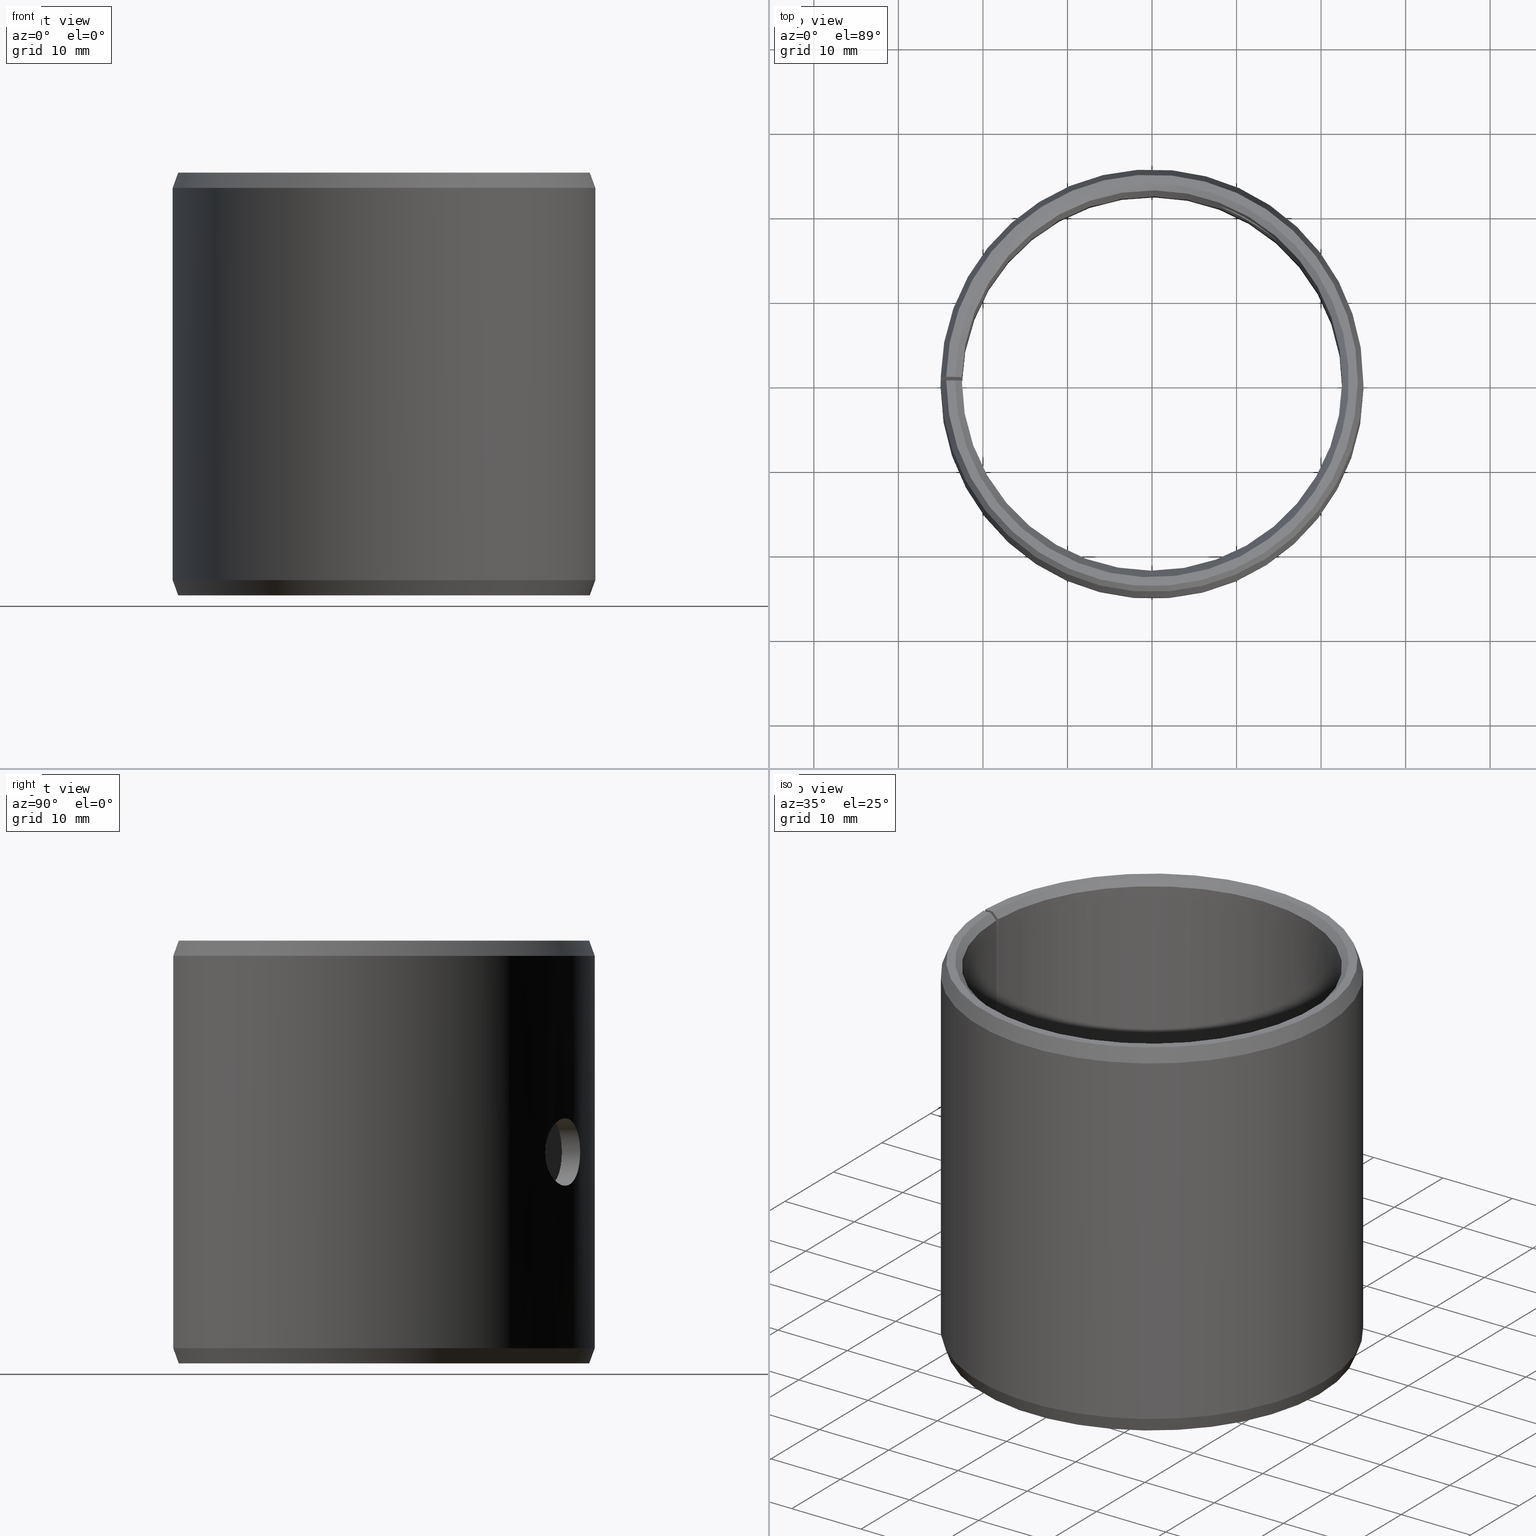
[diagram: canonical four-view strip — front | top / right | iso, engineering-drawing reading convention]
A machine part, canonical four-view strip (front | top / right | iso — engineering-drawing reading convention). The complete STEP part file that produces these views, byte-faithful:
ISO-10303-21;
HEADER;
FILE_DESCRIPTION(('STEP AP203'),'1');
FILE_NAME('440-POM4550LMB.stp','2016-09-21T00:51:27',(' '),(' '),'Spatial InterOp 3D',' ',' ');
FILE_SCHEMA(('CONFIG_CONTROL_DESIGN'));
ENDSEC;
DATA;
#1=DESIGN_CONTEXT('',#51,'design');
#2=APPLICATION_PROTOCOL_DEFINITION('INTERNATIONAL STANDARD','config_control_design',1994,#51);
#3=PRODUCT_CATEGORY_RELATIONSHIP('NONE','NONE',#52,#53);
#4=DATE_AND_TIME(#54,#55);
#5=DATE_TIME_ROLE('creation_date');
#6=DATE_TIME_ROLE('classification_date');
#7=PERSON_AND_ORGANIZATION_ROLE('creator');
#8=PERSON_AND_ORGANIZATION_ROLE('design_supplier');
#9=PERSON_AND_ORGANIZATION_ROLE('classification_officer');
#10=PERSON_AND_ORGANIZATION_ROLE('design_owner');
#11=APPROVAL_PERSON_ORGANIZATION(#56,#57,#58);
#12=APPROVAL_DATE_TIME(#4,#57);
#13=CC_DESIGN_APPROVAL(#57,(#59,#60,#61));
#14=CC_DESIGN_DATE_AND_TIME_ASSIGNMENT(#4,#5,(#61));
#15=CC_DESIGN_DATE_AND_TIME_ASSIGNMENT(#4,#6,(#59));
#16=CC_DESIGN_PERSON_AND_ORGANIZATION_ASSIGNMENT(#56,#10,(#62));
#17=CC_DESIGN_PERSON_AND_ORGANIZATION_ASSIGNMENT(#56,#7,(#61));
#18=CC_DESIGN_PERSON_AND_ORGANIZATION_ASSIGNMENT(#56,#7,(#60));
#19=CC_DESIGN_PERSON_AND_ORGANIZATION_ASSIGNMENT(#56,#8,(#60));
#20=CC_DESIGN_SECURITY_CLASSIFICATION(#59,(#60));
#21=CC_DESIGN_PERSON_AND_ORGANIZATION_ASSIGNMENT(#56,#9,(#59));
#22=SHAPE_DEFINITION_REPRESENTATION(#63,#64);
#23=DESIGN_CONTEXT('',#65,'design');
#24=APPLICATION_PROTOCOL_DEFINITION('INTERNATIONAL STANDARD','config_control_design',1994,#65);
#25=PRODUCT_CATEGORY_RELATIONSHIP('NONE','NONE',#66,#67);
#26=DATE_AND_TIME(#68,#69);
#27=DATE_TIME_ROLE('creation_date');
#28=DATE_TIME_ROLE('classification_date');
#29=PERSON_AND_ORGANIZATION_ROLE('creator');
#30=PERSON_AND_ORGANIZATION_ROLE('design_supplier');
#31=PERSON_AND_ORGANIZATION_ROLE('classification_officer');
#32=PERSON_AND_ORGANIZATION_ROLE('design_owner');
#33=APPROVAL_PERSON_ORGANIZATION(#70,#71,#72);
#34=APPROVAL_DATE_TIME(#26,#71);
#35=CC_DESIGN_APPROVAL(#71,(#73,#74,#75));
#36=CC_DESIGN_DATE_AND_TIME_ASSIGNMENT(#26,#27,(#75));
#37=CC_DESIGN_DATE_AND_TIME_ASSIGNMENT(#26,#28,(#73));
#38=CC_DESIGN_PERSON_AND_ORGANIZATION_ASSIGNMENT(#70,#32,(#76));
#39=CC_DESIGN_PERSON_AND_ORGANIZATION_ASSIGNMENT(#70,#29,(#75));
#40=CC_DESIGN_PERSON_AND_ORGANIZATION_ASSIGNMENT(#70,#29,(#74));
#41=CC_DESIGN_PERSON_AND_ORGANIZATION_ASSIGNMENT(#70,#30,(#74));
#42=CC_DESIGN_SECURITY_CLASSIFICATION(#73,(#74));
#43=CC_DESIGN_PERSON_AND_ORGANIZATION_ASSIGNMENT(#70,#31,(#73));
#44=CONTEXT_DEPENDENT_SHAPE_REPRESENTATION(#77,#78);
#45=SHAPE_DEFINITION_REPRESENTATION(#79,#80);
#46=SHAPE_REPRESENTATION_RELATIONSHIP('NONE','NONE',#80,#81);
#47= (GEOMETRIC_REPRESENTATION_CONTEXT(3)GLOBAL_UNCERTAINTY_ASSIGNED_CONTEXT((#84))GLOBAL_UNIT_ASSIGNED_CONTEXT((#86,#87,#88))REPRESENTATION_CONTEXT('NONE','WORKSPACE'));
#51=APPLICATION_CONTEXT('CONFIGURATION CONTROLLED 3D DESIGNS OF MECHANICAL PARTS AND ASSEMBLIES');
#52=PRODUCT_CATEGORY('part','NONE');
#53=PRODUCT_RELATED_PRODUCT_CATEGORY('detail',' ',(#62));
#54=CALENDAR_DATE(2016,21,8);
#55=LOCAL_TIME(2,51,27.0,#90);
#56=PERSON_AND_ORGANIZATION(#91,#92);
#57=APPROVAL(#93,'SOLID MODEL');
#58=APPROVAL_ROLE('APPROVED');
#59=SECURITY_CLASSIFICATION('','',#94);
#60=PRODUCT_DEFINITION_FORMATION_WITH_SPECIFIED_SOURCE(' ','NONE',#62,.NOT_KNOWN.);
#61=PRODUCT_DEFINITION('NONE','NONE',#60,#1);
#62=PRODUCT('','','PART--DESC',(#95));
#63=PRODUCT_DEFINITION_SHAPE('NONE','NONE',#61);
#64=SHAPE_REPRESENTATION('',(#96,#97),#98);
#65=APPLICATION_CONTEXT('CONFIGURATION CONTROLLED 3D DESIGNS OF MECHANICAL PARTS AND ASSEMBLIES');
#66=PRODUCT_CATEGORY('part','NONE');
#67=PRODUCT_RELATED_PRODUCT_CATEGORY('detail',' ',(#76));
#68=CALENDAR_DATE(2016,21,8);
#69=LOCAL_TIME(2,51,27.0,#99);
#70=PERSON_AND_ORGANIZATION(#100,#101);
#71=APPROVAL(#102,'SOLID MODEL');
#72=APPROVAL_ROLE('APPROVED');
#73=SECURITY_CLASSIFICATION('','',#103);
#74=PRODUCT_DEFINITION_FORMATION_WITH_SPECIFIED_SOURCE(' ','NONE',#76,.NOT_KNOWN.);
#75=PRODUCT_DEFINITION('440-POM4550LMB','440-POM4550LMB',#74,#23);
#76=PRODUCT('440-POM4550LMB','440-POM4550LMB','PART-440-POM4550LMB-DESC',(#104));
#77=(REPRESENTATION_RELATIONSHIP('','',#80,#64)REPRESENTATION_RELATIONSHIP_WITH_TRANSFORMATION(#107)SHAPE_REPRESENTATION_RELATIONSHIP());
#78=PRODUCT_DEFINITION_SHAPE('NAUO-PROD-DEF','NAUO-PROD-DEF',#109);
#79=PRODUCT_DEFINITION_SHAPE('NONE','NONE',#75);
#80=SHAPE_REPRESENTATION('440-POM4550LMB',(#96),#98);
#81=ADVANCED_BREP_SHAPE_REPRESENTATION('',(#110),#47);
#84=UNCERTAINTY_MEASURE_WITH_UNIT(LENGTH_MEASURE(1.0E-006),#86,'','');
#86= (CONVERSION_BASED_UNIT('METRE',#113)LENGTH_UNIT()NAMED_UNIT(#116));
#87= (NAMED_UNIT(#118)PLANE_ANGLE_UNIT()SI_UNIT($,.RADIAN.));
#88= (NAMED_UNIT(#118)SOLID_ANGLE_UNIT()SI_UNIT($,.STERADIAN.));
#90=COORDINATED_UNIVERSAL_TIME_OFFSET(1,0,.AHEAD.);
#91=PERSON('','UNSPECIFIED',$,$,$,$);
#92=ORGANIZATION('UNSPECIFIED','UNSPECIFIED','UNSPECIFIED');
#93=APPROVAL_STATUS('approved');
#94=SECURITY_CLASSIFICATION_LEVEL('unclassified');
#95=MECHANICAL_CONTEXT('',#51,'mechanical');
#96=AXIS2_PLACEMENT_3D('',#124,#125,#126);
#97=AXIS2_PLACEMENT_3D('',#127,#128,#129);
#98= (GEOMETRIC_REPRESENTATION_CONTEXT(3)GLOBAL_UNCERTAINTY_ASSIGNED_CONTEXT((#132))GLOBAL_UNIT_ASSIGNED_CONTEXT((#134,#135,#136))REPRESENTATION_CONTEXT('NONE','WORKSPACE'));
#99=COORDINATED_UNIVERSAL_TIME_OFFSET(1,0,.AHEAD.);
#100=PERSON('','UNSPECIFIED',$,$,$,$);
#101=ORGANIZATION('UNSPECIFIED','UNSPECIFIED','UNSPECIFIED');
#102=APPROVAL_STATUS('approved');
#103=SECURITY_CLASSIFICATION_LEVEL('unclassified');
#104=MECHANICAL_CONTEXT('',#65,'mechanical');
#107=ITEM_DEFINED_TRANSFORMATION('','',#96,#97);
#109=NEXT_ASSEMBLY_USAGE_OCCURRENCE('440-POM4550LMB','440-POM4550LMB','440-POM4550LMB',#61,#75,$);
#110=MANIFOLD_SOLID_BREP('',#138);
#113=LENGTH_MEASURE_WITH_UNIT(LENGTH_MEASURE(1.0),#139);
#116=DIMENSIONAL_EXPONENTS(1.0,0.0,0.0,0.0,0.0,0.0,0.0);
#118=DIMENSIONAL_EXPONENTS(0.0,0.0,0.0,0.0,0.0,0.0,0.0);
#124=CARTESIAN_POINT('',(0.0,0.0,0.0));
#125=DIRECTION('',(0.0,0.0,1.0));
#126=DIRECTION('',(1.0,0.0,0.0));
#127=CARTESIAN_POINT('',(0.0,0.0,0.0));
#128=DIRECTION('',(5.48707263966374E-016,-5.48707263966376E-016,1.0));
#129=DIRECTION('',(1.39349996950756E-015,1.0,5.48707263966375E-016));
#132=UNCERTAINTY_MEASURE_WITH_UNIT(LENGTH_MEASURE(1.0E-006),#134,'','');
#134= (CONVERSION_BASED_UNIT('METRE',#142)LENGTH_UNIT()NAMED_UNIT(#145));
#135= (NAMED_UNIT(#147)PLANE_ANGLE_UNIT()SI_UNIT($,.RADIAN.));
#136= (NAMED_UNIT(#147)SOLID_ANGLE_UNIT()SI_UNIT($,.STERADIAN.));
#138=CLOSED_SHELL('',(#153,#154,#155,#156,#157,#158,#159,#160,#161,#162,#163));
#139= (NAMED_UNIT(#116)LENGTH_UNIT()SI_UNIT($,.METRE.));
#142=LENGTH_MEASURE_WITH_UNIT(LENGTH_MEASURE(1.0),#165);
#145=DIMENSIONAL_EXPONENTS(1.0,0.0,0.0,0.0,0.0,0.0,0.0);
#147=DIMENSIONAL_EXPONENTS(0.0,0.0,0.0,0.0,0.0,0.0,0.0);
#153=ADVANCED_FACE('',(#166),#167,.F.);
#154=ADVANCED_FACE('',(#168),#169,.T.);
#155=ADVANCED_FACE('',(#170),#171,.T.);
#156=ADVANCED_FACE('',(#172),#173,.T.);
#157=ADVANCED_FACE('',(#174),#175,.T.);
#158=ADVANCED_FACE('',(#176),#177,.F.);
#159=ADVANCED_FACE('',(#178),#179,.T.);
#160=ADVANCED_FACE('',(#180),#181,.F.);
#161=ADVANCED_FACE('',(#182,#183),#184,.F.);
#162=ADVANCED_FACE('',(#185,#186),#187,.T.);
#163=ADVANCED_FACE('',(#188,#189),#190,.F.);
#165= (NAMED_UNIT(#145)LENGTH_UNIT()SI_UNIT($,.METRE.));
#166=FACE_OUTER_BOUND('',#192,.T.);
#167=CONICAL_SURFACE('',#193,0.0225,0.785398163397449);
#168=FACE_OUTER_BOUND('',#194,.T.);
#169=PLANE('',#195);
#170=FACE_OUTER_BOUND('',#196,.T.);
#171=CONICAL_SURFACE('',#197,0.0243448535783208,0.349065850398867);
#172=FACE_OUTER_BOUND('',#198,.T.);
#173=CONICAL_SURFACE('',#199,0.025,0.349065850398867);
#174=FACE_OUTER_BOUND('',#200,.T.);
#175=PLANE('',#201);
#176=FACE_OUTER_BOUND('',#202,.T.);
#177=CONICAL_SURFACE('',#203,0.0233,0.785398163397448);
#178=FACE_OUTER_BOUND('',#204,.T.);
#179=PLANE('',#205);
#180=FACE_OUTER_BOUND('',#206,.T.);
#181=PLANE('',#207);
#182=FACE_OUTER_BOUND('',#208,.T.);
#183=FACE_BOUND('',#209,.T.);
#184=CYLINDRICAL_SURFACE('',#210,0.0225);
#185=FACE_OUTER_BOUND('',#211,.T.);
#186=FACE_BOUND('',#212,.T.);
#187=CYLINDRICAL_SURFACE('',#213,0.025);
#188=FACE_OUTER_BOUND('',#214,.T.);
#189=FACE_OUTER_BOUND('',#215,.T.);
#190=CYLINDRICAL_SURFACE('',#216,0.004);
#192=EDGE_LOOP('',(#217,#218,#219,#220));
#193=AXIS2_PLACEMENT_3D('',#221,#222,#223);
#194=EDGE_LOOP('',(#224,#225,#226,#227));
#195=AXIS2_PLACEMENT_3D('',#228,#229,#230);
#196=EDGE_LOOP('',(#231,#232,#233,#234));
#197=AXIS2_PLACEMENT_3D('',#235,#236,#237);
#198=EDGE_LOOP('',(#238,#239,#240,#241));
#199=AXIS2_PLACEMENT_3D('',#242,#243,#244);
#200=EDGE_LOOP('',(#245,#246,#247,#248));
#201=AXIS2_PLACEMENT_3D('',#249,#250,#251);
#202=EDGE_LOOP('',(#252,#253,#254,#255));
#203=AXIS2_PLACEMENT_3D('',#256,#257,#258);
#204=EDGE_LOOP('',(#259,#260,#261,#262,#263,#264,#265,#266));
#205=AXIS2_PLACEMENT_3D('',#267,#268,#269);
#206=EDGE_LOOP('',(#270,#271,#272,#273,#274,#275,#276,#277));
#207=AXIS2_PLACEMENT_3D('',#278,#279,#280);
#208=EDGE_LOOP('',(#281,#282,#283,#284));
#209=EDGE_LOOP('',(#285));
#210=AXIS2_PLACEMENT_3D('',#286,#287,#288);
#211=EDGE_LOOP('',(#289,#290,#291,#292));
#212=EDGE_LOOP('',(#293));
#213=AXIS2_PLACEMENT_3D('',#294,#295,#296);
#214=EDGE_LOOP('',(#297));
#215=EDGE_LOOP('',(#298));
#216=AXIS2_PLACEMENT_3D('',#299,#300,#301);
#217=ORIENTED_EDGE('',*,*,#302,.T.);
#218=ORIENTED_EDGE('',*,*,#303,.F.);
#219=ORIENTED_EDGE('',*,*,#304,.F.);
#220=ORIENTED_EDGE('',*,*,#305,.T.);
#221=CARTESIAN_POINT('',(-6.93889390390723E-018,-6.93889390390723E-018,0.0008));
#222=DIRECTION('',(6.12323399573677E-017,-0.0,-1.0));
#223=DIRECTION('',(-1.0,0.0,-6.12323399573677E-017));
#224=ORIENTED_EDGE('',*,*,#306,.T.);
#225=ORIENTED_EDGE('',*,*,#307,.F.);
#226=ORIENTED_EDGE('',*,*,#302,.F.);
#227=ORIENTED_EDGE('',*,*,#308,.T.);
#228=CARTESIAN_POINT('',(0.0004066410699887,0.0232964512971439,1.32594219122078E-018));
#229=DIRECTION('',(6.12323399573677E-017,0.0,-1.0));
#230=DIRECTION('',(-1.0,0.0,-6.12323399573677E-017));
#231=ORIENTED_EDGE('',*,*,#309,.T.);
#232=ORIENTED_EDGE('',*,*,#310,.F.);
#233=ORIENTED_EDGE('',*,*,#306,.F.);
#234=ORIENTED_EDGE('',*,*,#311,.T.);
#235=CARTESIAN_POINT('',(-6.93889390390723E-018,-6.93889390390723E-018,1.3010426069826E-018));
#236=DIRECTION('',(-6.12323399573677E-017,0.0,1.0));
#237=DIRECTION('',(1.0,0.0,6.12323399573677E-017));
#238=ORIENTED_EDGE('',*,*,#312,.T.);
#239=ORIENTED_EDGE('',*,*,#313,.F.);
#240=ORIENTED_EDGE('',*,*,#314,.F.);
#241=ORIENTED_EDGE('',*,*,#315,.T.);
#242=CARTESIAN_POINT('',(-1.04083408558608E-017,-6.93889390390723E-018,0.0482));
#243=DIRECTION('',(6.12323399573677E-017,-0.0,-1.0));
#244=DIRECTION('',(-1.0,0.0,-6.12323399573677E-017));
#245=ORIENTED_EDGE('',*,*,#316,.T.);
#246=ORIENTED_EDGE('',*,*,#317,.T.);
#247=ORIENTED_EDGE('',*,*,#318,.F.);
#248=ORIENTED_EDGE('',*,*,#312,.F.);
#249=CARTESIAN_POINT('',(0.000424876279305002,0.0243411457392039,0.05));
#250=DIRECTION('',(-6.12323399573677E-017,0.0,1.0));
#251=DIRECTION('',(1.0,0.0,6.12323399573677E-017));
#252=ORIENTED_EDGE('',*,*,#319,.T.);
#253=ORIENTED_EDGE('',*,*,#320,.F.);
#254=ORIENTED_EDGE('',*,*,#317,.F.);
#255=ORIENTED_EDGE('',*,*,#321,.T.);
#256=CARTESIAN_POINT('',(-1.04083408558608E-017,-6.93889390390723E-018,0.05));
#257=DIRECTION('',(-6.12323399573677E-017,0.0,1.0));
#258=DIRECTION('',(1.0,0.0,6.12323399573677E-017));
#259=ORIENTED_EDGE('',*,*,#320,.T.);
#260=ORIENTED_EDGE('',*,*,#322,.T.);
#261=ORIENTED_EDGE('',*,*,#303,.T.);
#262=ORIENTED_EDGE('',*,*,#307,.T.);
#263=ORIENTED_EDGE('',*,*,#310,.T.);
#264=ORIENTED_EDGE('',*,*,#323,.T.);
#265=ORIENTED_EDGE('',*,*,#313,.T.);
#266=ORIENTED_EDGE('',*,*,#318,.T.);
#267=CARTESIAN_POINT('',(-6.93889390390723E-018,-0.014,0.0));
#268=DIRECTION('',(1.0,0.0,0.0));
#269=DIRECTION('',(0.0,0.0,-1.0));
#270=ORIENTED_EDGE('',*,*,#321,.F.);
#271=ORIENTED_EDGE('',*,*,#316,.F.);
#272=ORIENTED_EDGE('',*,*,#315,.F.);
#273=ORIENTED_EDGE('',*,*,#324,.F.);
#274=ORIENTED_EDGE('',*,*,#311,.F.);
#275=ORIENTED_EDGE('',*,*,#308,.F.);
#276=ORIENTED_EDGE('',*,*,#305,.F.);
#277=ORIENTED_EDGE('',*,*,#325,.F.);
#278=CARTESIAN_POINT('',(-0.000244333690121977,-0.0139978677321895,-1.49611235765866E-020));
#279=DIRECTION('',(0.999847695156391,-0.0174524064372836,-9.3259819610035E-021));
#280=DIRECTION('',(9.32598196100733E-021,1.0686516840419E-018,-1.0));
#281=ORIENTED_EDGE('',*,*,#304,.T.);
#282=ORIENTED_EDGE('',*,*,#322,.F.);
#283=ORIENTED_EDGE('',*,*,#319,.F.);
#284=ORIENTED_EDGE('',*,*,#325,.T.);
#285=ORIENTED_EDGE('',*,*,#326,.T.);
#286=CARTESIAN_POINT('',(-6.93889390390723E-018,-6.93889390390723E-018,0.0));
#287=DIRECTION('',(6.12323399573677E-017,0.0,-1.0));
#288=DIRECTION('',(-1.0,0.0,-6.12323399573677E-017));
#289=ORIENTED_EDGE('',*,*,#314,.T.);
#290=ORIENTED_EDGE('',*,*,#323,.F.);
#291=ORIENTED_EDGE('',*,*,#309,.F.);
#292=ORIENTED_EDGE('',*,*,#324,.T.);
#293=ORIENTED_EDGE('',*,*,#327,.T.);
#294=CARTESIAN_POINT('',(-6.93889390390723E-018,-6.93889390390723E-018,0.0));
#295=DIRECTION('',(6.12323399573677E-017,0.0,-1.0));
#296=DIRECTION('',(-1.0,0.0,-6.12323399573677E-017));
#297=ORIENTED_EDGE('',*,*,#326,.F.);
#298=ORIENTED_EDGE('',*,*,#327,.F.);
#299=CARTESIAN_POINT('',(0.0171433460140782,-0.0103007614981412,0.025));
#300=DIRECTION('',(0.857167300703911,-0.515038074907061,0.0));
#301=DIRECTION('',(-0.515038074907061,-0.857167300703911,0.0));
#302=EDGE_CURVE('',#328,#329,#330,.T.);
#303=EDGE_CURVE('',#331,#329,#332,.T.);
#304=EDGE_CURVE('',#333,#331,#334,.T.);
#305=EDGE_CURVE('',#333,#328,#335,.T.);
#306=EDGE_CURVE('',#336,#337,#338,.T.);
#307=EDGE_CURVE('',#329,#337,#339,.T.);
#308=EDGE_CURVE('',#328,#336,#340,.T.);
#309=EDGE_CURVE('',#341,#342,#343,.T.);
#310=EDGE_CURVE('',#337,#342,#344,.T.);
#311=EDGE_CURVE('',#336,#341,#345,.T.);
#312=EDGE_CURVE('',#346,#347,#348,.T.);
#313=EDGE_CURVE('',#349,#347,#350,.T.);
#314=EDGE_CURVE('',#351,#349,#352,.T.);
#315=EDGE_CURVE('',#351,#346,#353,.T.);
#316=EDGE_CURVE('',#346,#354,#355,.T.);
#317=EDGE_CURVE('',#354,#356,#357,.T.);
#318=EDGE_CURVE('',#347,#356,#358,.T.);
#319=EDGE_CURVE('',#359,#360,#361,.T.);
#320=EDGE_CURVE('',#356,#360,#362,.T.);
#321=EDGE_CURVE('',#354,#359,#363,.T.);
#322=EDGE_CURVE('',#360,#331,#364,.T.);
#323=EDGE_CURVE('',#342,#349,#365,.T.);
#324=EDGE_CURVE('',#341,#351,#366,.T.);
#325=EDGE_CURVE('',#359,#333,#367,.T.);
#326=EDGE_CURVE('',#368,#368,#369,.T.);
#327=EDGE_CURVE('',#370,#370,#371,.T.);
#328=VERTEX_POINT('',#372);
#329=VERTEX_POINT('',#373);
#330=CIRCLE('',#374,0.0233);
#331=VERTEX_POINT('',#375);
#332=LINE('',#376,#377);
#333=VERTEX_POINT('',#378);
#334=CIRCLE('',#379,0.0225);
#335=LINE('',#380,#381);
#336=VERTEX_POINT('',#382);
#337=VERTEX_POINT('',#383);
#338=CIRCLE('',#384,0.0243448535783208);
#339=LINE('',#385,#386);
#340=LINE('',#387,#388);
#341=VERTEX_POINT('',#389);
#342=VERTEX_POINT('',#390);
#343=CIRCLE('',#391,0.025);
#344=LINE('',#392,#393);
#345=LINE('',#394,#395);
#346=VERTEX_POINT('',#396);
#347=VERTEX_POINT('',#397);
#348=CIRCLE('',#398,0.0243448535783208);
#349=VERTEX_POINT('',#399);
#350=LINE('',#400,#401);
#351=VERTEX_POINT('',#402);
#352=CIRCLE('',#403,0.025);
#353=LINE('',#404,#405);
#354=VERTEX_POINT('',#406);
#355=LINE('',#407,#408);
#356=VERTEX_POINT('',#409);
#357=CIRCLE('',#410,0.0233);
#358=LINE('',#411,#412);
#359=VERTEX_POINT('',#413);
#360=VERTEX_POINT('',#414);
#361=CIRCLE('',#415,0.0225);
#362=LINE('',#416,#417);
#363=LINE('',#418,#419);
#364=LINE('',#420,#421);
#365=LINE('',#422,#423);
#366=LINE('',#424,#425);
#367=LINE('',#426,#427);
#368=VERTEX_POINT('',#428);
#369=B_SPLINE_CURVE_WITH_KNOTS('',3,(#429,#430,#431,#432,#433,#434,#435,#436,#437,#438,#439,#440,#441,#442,#443,#444,#445,#446,#447,#448,#449,#450,#451,#452,#453,#454,#455,#456,#457,#458,#459,#460,#461,#462,#463,#464,#465,#466,#467,#468,#469,#470,#471,#472,#473,#474,#475,#476,#477,#478,#479,#480,#481,#482,#483,#484,#485,#486,#487,#488,#489,#490,#491,#492,#493,#494),.UNSPECIFIED.,.T.,.F.,(2,2,2,2,2,2,2,2,2,2,2,2,2,2,2,2,2,2,2,2,2,2,2,2,2,2,2,2,2,2,2,2,2,2,2),(-0.000783071138351041,0.0,0.000783071138351041,0.00156614227670208,0.00234921341505312,0.00313228455340416,0.0039153556917552,0.00469842683010624,0.00548149796845729,0.00626456910680833,0.00704764024515937,0.00783071138351041,0.00861378252186145,0.00939685366021249,0.0101799247985635,0.0109629959369146,0.0117460670752656,0.0125291382136167,0.0133122093519677,0.0140952804903187,0.0148783516286698,0.0156614227670208,0.0164444939053719,0.0172275650437229,0.0180106361820739,0.018793707320425,0.019576778458776,0.0203598495971271,0.0211429207354781,0.0219259918738291,0.0227090630121802,0.0234921341505312,0.0242752052888823,0.0250582764272333,0.0258413475655843),.UNSPECIFIED.);
#370=VERTEX_POINT('',#495);
#371=B_SPLINE_CURVE_WITH_KNOTS('',3,(#496,#497,#498,#499,#500,#501,#502,#503,#504,#505,#506,#507,#508,#509,#510,#511,#512,#513,#514,#515,#516,#517,#518,#519,#520,#521,#522,#523,#524,#525,#526,#527,#528,#529,#530,#531,#532,#533,#534,#535,#536,#537,#538,#539,#540,#541,#542,#543,#544,#545,#546,#547,#548,#549,#550,#551,#552,#553,#554,#555,#556,#557,#558,#559,#560,#561),.UNSPECIFIED.,.T.,.F.,(2,2,2,2,2,2,2,2,2,2,2,2,2,2,2,2,2,2,2,2,2,2,2,2,2,2,2,2,2,2,2,2,2,2,2),(-0.000782774363577456,0.0,0.000782774363577456,0.00156554872715491,0.00234832309073237,0.00313109745430982,0.00391387181788728,0.00469664618146473,0.00547942054504219,0.00626219490861964,0.0070449692721971,0.00782774363577456,0.00861051799935201,0.00939329236292947,0.0101760667265069,0.0109588410900844,0.0117416154536618,0.0125243898172393,0.0133071641808167,0.0140899385443942,0.0148727129079717,0.0156554872715491,0.0164382616351266,0.017221035998704,0.0180038103622815,0.0187865847258589,0.0195693590894364,0.0203521334530138,0.0211349078165913,0.0219176821801688,0.0227004565437462,0.0234832309073237,0.0242660052709011,0.0250487796344786,0.025831553998056),.UNSPECIFIED.);
#372=CARTESIAN_POINT('',(0.0004066410699887,0.0232964512971439,1.32594219122078E-018));
#373=CARTESIAN_POINT('',(-6.93889390390723E-018,0.0233,1.3010426069826E-018));
#374=AXIS2_PLACEMENT_3D('',#562,#563,#564);
#375=CARTESIAN_POINT('',(-6.93889390390723E-018,0.0225,0.0008));
#376=CARTESIAN_POINT('',(-6.93889390390723E-018,0.0225,0.0008));
#377=VECTOR('',#565,1.0);
#378=CARTESIAN_POINT('',(0.000392679144838874,0.0224965731410188,0.0008));
#379=AXIS2_PLACEMENT_3D('',#566,#567,#568);
#380=CARTESIAN_POINT('',(0.000392679144838874,0.0224965731410188,0.0008));
#381=VECTOR('',#569,1.0);
#382=CARTESIAN_POINT('',(0.000424876279305005,0.0243411457392039,1.32705877575683E-018));
#383=CARTESIAN_POINT('',(-6.93889390390723E-018,0.0243448535783208,1.3010426069826E-018));
#384=AXIS2_PLACEMENT_3D('',#570,#571,#572);
#385=CARTESIAN_POINT('',(-6.93889390390723E-018,0.0233,1.3010426069826E-018));
#386=VECTOR('',#573,1.0);
#387=CARTESIAN_POINT('',(0.0004066410699887,0.0232964512971439,1.32594219122078E-018));
#388=VECTOR('',#574,1.0);
#389=CARTESIAN_POINT('',(0.000436310160932082,0.0249961923789098,0.0018));
#390=CARTESIAN_POINT('',(-6.93889390390723E-018,0.025,0.0018));
#391=AXIS2_PLACEMENT_3D('',#575,#576,#577);
#392=CARTESIAN_POINT('',(-6.93889390390723E-018,0.0243448535783208,1.3010426069826E-018));
#393=VECTOR('',#578,1.0);
#394=CARTESIAN_POINT('',(0.000424876279305005,0.0243411457392039,1.32705877575683E-018));
#395=VECTOR('',#579,1.0);
#396=CARTESIAN_POINT('',(0.000424876279305002,0.0243411457392039,0.05));
#397=CARTESIAN_POINT('',(-1.04083408558608E-017,0.0243448535783208,0.05));
#398=AXIS2_PLACEMENT_3D('',#580,#581,#582);
#399=CARTESIAN_POINT('',(-1.04083408558608E-017,0.025,0.0482));
#400=CARTESIAN_POINT('',(-1.04083408558608E-017,0.025,0.0482));
#401=VECTOR('',#583,1.0);
#402=CARTESIAN_POINT('',(0.000436310160932079,0.0249961923789098,0.0482));
#403=AXIS2_PLACEMENT_3D('',#584,#585,#586);
#404=CARTESIAN_POINT('',(0.000436310160932079,0.0249961923789098,0.0482));
#405=VECTOR('',#587,1.0);
#406=CARTESIAN_POINT('',(0.000406641069988696,0.0232964512971439,0.05));
#407=CARTESIAN_POINT('',(0.000424876279305002,0.0243411457392039,0.05));
#408=VECTOR('',#588,1.0);
#409=CARTESIAN_POINT('',(-1.04083408558608E-017,0.0233,0.05));
#410=AXIS2_PLACEMENT_3D('',#589,#590,#591);
#411=CARTESIAN_POINT('',(-1.04083408558608E-017,0.0243448535783208,0.05));
#412=VECTOR('',#592,1.0);
#413=CARTESIAN_POINT('',(0.00039267914483887,0.0224965731410188,0.0492));
#414=CARTESIAN_POINT('',(-1.04083408558608E-017,0.0225,0.0492));
#415=AXIS2_PLACEMENT_3D('',#593,#594,#595);
#416=CARTESIAN_POINT('',(-1.04083408558608E-017,0.0233,0.05));
#417=VECTOR('',#596,1.0);
#418=CARTESIAN_POINT('',(0.000406641069988696,0.0232964512971439,0.05));
#419=VECTOR('',#597,1.0);
#420=CARTESIAN_POINT('',(-1.04083408558608E-017,0.0225,0.0492));
#421=VECTOR('',#598,1.0);
#422=CARTESIAN_POINT('',(-6.93889390390723E-018,0.025,0.0018));
#423=VECTOR('',#599,1.0);
#424=CARTESIAN_POINT('',(0.000436310160932082,0.0249961923789098,0.0018));
#425=VECTOR('',#600,1.0);
#426=CARTESIAN_POINT('',(0.00039267914483887,0.0224965731410188,0.0492));
#427=VECTOR('',#601,1.0);
#428=CARTESIAN_POINT('',(0.0169188944843755,-0.014832431001915,0.025));
#429=CARTESIAN_POINT('',(0.0169188944843755,-0.014832431001915,0.0252648239408134));
#430=CARTESIAN_POINT('',(0.0169188944843755,-0.014832431001915,0.0247351760591866));
#431=CARTESIAN_POINT('',(0.016936375949175,-0.01481255711468,0.0244748849743466));
#432=CARTESIAN_POINT('',(0.0170043405550526,-0.0147344861076063,0.0239629641082524));
#433=CARTESIAN_POINT('',(0.0170556653860712,-0.0146753075894989,0.0237086435633796));
#434=CARTESIAN_POINT('',(0.0171878316754587,-0.0145202898354039,0.0232245117148044));
#435=CARTESIAN_POINT('',(0.0172680848129228,-0.0144251439544006,0.0229949777267228));
#436=CARTESIAN_POINT('',(0.0174547570024016,-0.0141986967429615,0.0225605767934485));
#437=CARTESIAN_POINT('',(0.0175619086449628,-0.0140664069917009,0.0223553159208332));
#438=CARTESIAN_POINT('',(0.0177915462291344,-0.0137748075734931,0.0219871790525546));
#439=CARTESIAN_POINT('',(0.0179149458610226,-0.0136144386403193,0.0218217898879218));
#440=CARTESIAN_POINT('',(0.0181772630804321,-0.0132621767292986,0.0215293499198565));
#441=CARTESIAN_POINT('',(0.018313706033903,-0.0130734960891337,0.0214054147911471));
#442=CARTESIAN_POINT('',(0.0185896470046014,-0.0126780579322357,0.021205742640954));
#443=CARTESIAN_POINT('',(0.0187311701300543,-0.0124683622139208,0.0211286525849882));
#444=CARTESIAN_POINT('',(0.0190126182011899,-0.0120348302802469,0.0210256873622918));
#445=CARTESIAN_POINT('',(0.0191503937224414,-0.0118144306964457,0.021000152232198));
#446=CARTESIAN_POINT('',(0.0194197460387826,-0.0113662577920277,0.0209998491120387));
#447=CARTESIAN_POINT('',(0.019552544543614,-0.0111361563515037,0.0210259412340167));
#448=CARTESIAN_POINT('',(0.0198016752328397,-0.0106868907727312,0.0211282137773826));
#449=CARTESIAN_POINT('',(0.0199190234716017,-0.0104662107951223,0.0212038783046247));
#450=CARTESIAN_POINT('',(0.0201404494756432,-0.0100335118173658,0.021404669012368));
#451=CARTESIAN_POINT('',(0.0202435949286436,-0.00982314386283515,0.0215296788565398));
#452=CARTESIAN_POINT('',(0.0204296789345391,-0.00943003232320062,0.0218189182399421));
#453=CARTESIAN_POINT('',(0.0205140570558744,-0.00924438627613547,0.0219847761415157));
#454=CARTESIAN_POINT('',(0.0206653933560887,-0.00890093994767964,0.0223569202971638));
#455=CARTESIAN_POINT('',(0.0207305060976281,-0.00874743157575961,0.022558319785767));
#456=CARTESIAN_POINT('',(0.0208426031414455,-0.00847687067995027,0.0229909414568819));
#457=CARTESIAN_POINT('',(0.020889942052306,-0.00835886782937066,0.0232250304925547));
#458=CARTESIAN_POINT('',(0.0209646776959172,-0.0081696168480474,0.0237087019930758));
#459=CARTESIAN_POINT('',(0.0209923716961196,-0.00809771922858961,0.0239580119455188));
#460=CARTESIAN_POINT('',(0.0210297277407007,-0.00800020482769744,0.0244716680231499));
#461=CARTESIAN_POINT('',(0.0210391616243807,-0.00797519141803435,0.0247371046779977));
#462=CARTESIAN_POINT('',(0.0210392363160476,-0.00797499437295122,0.0252597209911158));
#463=CARTESIAN_POINT('',(0.0210301803915054,-0.00799901454863984,0.0255198041655211));
#464=CARTESIAN_POINT('',(0.0209928649243888,-0.00809644016311975,0.0260374523369932));
#465=CARTESIAN_POINT('',(0.0209649084586411,-0.00816901620024273,0.0262891873750039));
#466=CARTESIAN_POINT('',(0.0208906836907997,-0.00835700588069574,0.0267707789627647));
#467=CARTESIAN_POINT('',(0.0208437433101393,-0.00847408150909604,0.0270041543350966));
#468=CARTESIAN_POINT('',(0.0207310198627332,-0.00874622821865182,0.027440193979593));
#469=CARTESIAN_POINT('',(0.0206659216534032,-0.00889967153480814,0.0276412819285623));
#470=CARTESIAN_POINT('',(0.0205162418802815,-0.00923949621580412,0.0280103409679439));
#471=CARTESIAN_POINT('',(0.0204307542807203,-0.00942770845315506,0.0281791640429564));
#472=CARTESIAN_POINT('',(0.0202444819768541,-0.00982132153254808,0.028469186035975));
#473=CARTESIAN_POINT('',(0.0201431681907184,-0.0100280523454824,0.0285923386776541));
#474=CARTESIAN_POINT('',(0.0199218707010078,-0.0104607899498858,0.028794053684639));
#475=CARTESIAN_POINT('',(0.0198027427546358,-0.0106848898500095,0.0288711159752374));
#476=CARTESIAN_POINT('',(0.0195545928020703,-0.0111325375390489,0.0289734470362209));
#477=CARTESIAN_POINT('',(0.0194239170476044,-0.0113591933017726,0.0289997952242568));
#478=CARTESIAN_POINT('',(0.019151785613718,-0.011812236610627,0.0290002024013658));
#479=CARTESIAN_POINT('',(0.0190138509755028,-0.0120328372613555,0.0289744746181408));
#480=CARTESIAN_POINT('',(0.0187347925645513,-0.0124628748304767,0.0288729566837062));
#481=CARTESIAN_POINT('',(0.0185921064682813,-0.0126744755688184,0.0287958225925101));
#482=CARTESIAN_POINT('',(0.0183147395033128,-0.0130720721692575,0.0285955447938872));
#483=CARTESIAN_POINT('',(0.0181796535067149,-0.0132588853623534,0.0284728911951081));
#484=CARTESIAN_POINT('',(0.0179184543689647,-0.0136098066005204,0.0281825358572003));
#485=CARTESIAN_POINT('',(0.0177926403679532,-0.0137733943014985,0.0280143641511792));
#486=CARTESIAN_POINT('',(0.0175630227887815,-0.0140650159036033,0.0276466790015331));
#487=CARTESIAN_POINT('',(0.0174577005611196,-0.0141950941704703,0.0274456664366932));
#488=CARTESIAN_POINT('',(0.0172690063808723,-0.0144240571964904,0.0270077611856305));
#489=CARTESIAN_POINT('',(0.0171884301527821,-0.0145195784679027,0.0267771084542363));
#490=CARTESIAN_POINT('',(0.0170568131118944,-0.0146739707124064,0.0262961251508816));
#491=CARTESIAN_POINT('',(0.0170052828583964,-0.0147334011056704,0.026042913413112));
#492=CARTESIAN_POINT('',(0.0169363800152721,-0.0148125549859885,0.0255263490377714));
#493=CARTESIAN_POINT('',(0.0169188944843755,-0.014832431001915,0.0252648239408134));
#494=CARTESIAN_POINT('',(0.0169188944843755,-0.014832431001915,0.0247351760591866));
#495=CARTESIAN_POINT('',(0.019092958366895,-0.0161387403721608,0.025));
#496=CARTESIAN_POINT('',(0.0190929583668951,-0.0161387403721608,0.0247352846364953));
#497=CARTESIAN_POINT('',(0.019092958366895,-0.0161387403721608,0.0252647153635047));
#498=CARTESIAN_POINT('',(0.0191100075456856,-0.0161186311781822,0.0255249206593617));
#499=CARTESIAN_POINT('',(0.0191763435262859,-0.0160396542486521,0.0260367069670796));
#500=CARTESIAN_POINT('',(0.0192264483151425,-0.0159797998159376,0.0262909716591328));
#501=CARTESIAN_POINT('',(0.0193556600886466,-0.0158230445712908,0.0267751578804514));
#502=CARTESIAN_POINT('',(0.019434177887983,-0.0157268614467031,0.0270047337451618));
#503=CARTESIAN_POINT('',(0.0196170663734486,-0.0154981336955543,0.0274392140975417));
#504=CARTESIAN_POINT('',(0.0197221996782076,-0.0153645437920421,0.0276445947564888));
#505=CARTESIAN_POINT('',(0.019947881847943,-0.0150703807471869,0.0280128939775394));
#506=CARTESIAN_POINT('',(0.0200693127310432,-0.0149087500634783,0.0281783183909653));
#507=CARTESIAN_POINT('',(0.0203278946297781,-0.0145542035808324,0.0284707515605977));
#508=CARTESIAN_POINT('',(0.0204627249230477,-0.0143643648001294,0.0285947519690934));
#509=CARTESIAN_POINT('',(0.020735856115913,-0.013967188640799,0.0287943872471358));
#510=CARTESIAN_POINT('',(0.0208761697752705,-0.0137569000395724,0.0288714164881974));
#511=CARTESIAN_POINT('',(0.0211560467789673,-0.0133224790437385,0.0289743394075874));
#512=CARTESIAN_POINT('',(0.0212933915026356,-0.0131018995464122,0.0289998502321985));
#513=CARTESIAN_POINT('',(0.0215626222820773,-0.0126539169322884,0.029000148465435));
#514=CARTESIAN_POINT('',(0.0216957609745178,-0.0124241658250473,0.0289740824792415));
#515=CARTESIAN_POINT('',(0.0219463878674841,-0.0119758924628452,0.0288718587035368));
#516=CARTESIAN_POINT('',(0.0220648364913558,-0.0117559334420258,0.0287962288406747));
#517=CARTESIAN_POINT('',(0.022289053588429,-0.011325063823915,0.0285955533354993));
#518=CARTESIAN_POINT('',(0.0223939979548002,-0.0111155785487148,0.0284704956518536));
#519=CARTESIAN_POINT('',(0.0225838559203347,-0.0107245830987413,0.0281812124670379));
#520=CARTESIAN_POINT('',(0.0226701897315481,-0.0105402880822688,0.0280155202406248));
#521=CARTESIAN_POINT('',(0.0228257763948981,-0.0101989757962121,0.0276430517640914));
#522=CARTESIAN_POINT('',(0.0228929450206155,-0.0100466125255983,0.0274415246960236));
#523=CARTESIAN_POINT('',(0.023008828264826,-0.00977830132672222,0.0270088143853217));
#524=CARTESIAN_POINT('',(0.0230579178968177,-0.00966140374420421,0.0267747836845488));
#525=CARTESIAN_POINT('',(0.0231355988265324,-0.00947387813847453,0.0262909154892163));
#526=CARTESIAN_POINT('',(0.0231644450919709,-0.00940272243081901,0.0260416046920652));
#527=CARTESIAN_POINT('',(0.0232033707625033,-0.00930625009269418,0.0255281954731317));
#528=CARTESIAN_POINT('',(0.023213224625638,-0.00928149785811952,0.0252628076308033));
#529=CARTESIAN_POINT('',(0.0232133010789613,-0.00928130664443843,0.0247403047496917));
#530=CARTESIAN_POINT('',(0.0232038419298176,-0.0093050748396693,0.0244803518562288));
#531=CARTESIAN_POINT('',(0.0231649750750804,-0.00940141626813282,0.0239631117072041));
#532=CARTESIAN_POINT('',(0.0231358264205248,-0.00947331453686184,0.0237111227774637));
#533=CARTESIAN_POINT('',(0.0230587139304086,-0.00965949607125301,0.0232295623170417));
#534=CARTESIAN_POINT('',(0.0230100785080493,-0.00977537304505356,0.0229963720260238));
#535=CARTESIAN_POINT('',(0.0228934725947163,-0.0100454240165126,0.0225599351289016));
#536=CARTESIAN_POINT('',(0.0228263174703383,-0.0101977250336391,0.0223587604476351));
#537=CARTESIAN_POINT('',(0.022672580786454,-0.0105351053910294,0.0219896967132713));
#538=CARTESIAN_POINT('',(0.0225850117368397,-0.010722155894173,0.0218207966518822));
#539=CARTESIAN_POINT('',(0.0223948865816886,-0.0111137949038769,0.0215306129629998));
#540=CARTESIAN_POINT('',(0.0222918595693912,-0.0113195377585723,0.0214074940177244));
#541=CARTESIAN_POINT('',(0.0220678312743023,-0.0117503089737304,0.0212059292143014));
#542=CARTESIAN_POINT('',(0.0219474491669064,-0.0119739273350984,0.0211288016604733));
#543=CARTESIAN_POINT('',(0.0216977926625698,-0.0124205979860991,0.0210265215012522));
#544=CARTESIAN_POINT('',(0.0215669874863443,-0.0126465381133032,0.0210002181744511));
#545=CARTESIAN_POINT('',(0.0212947569227861,-0.0130997405732639,0.0209997845168902));
#546=CARTESIAN_POINT('',(0.0211572288997442,-0.0133205588163997,0.0210255171992776));
#547=CARTESIAN_POINT('',(0.0208798314497473,-0.0137513003213325,0.0211269506740591));
#548=CARTESIAN_POINT('',(0.0207384007386523,-0.013963434419344,0.0212039750414573));
#549=CARTESIAN_POINT('',(0.0204637288243114,-0.0143629582115003,0.0214042949305101));
#550=CARTESIAN_POINT('',(0.0203303205639331,-0.0145508001867463,0.0215269509130078));
#551=CARTESIAN_POINT('',(0.0200729461445311,-0.0149038435776028,0.0218171369332069));
#552=CARTESIAN_POINT('',(0.0199490097845413,-0.0150688880681907,0.0219854845443623));
#553=CARTESIAN_POINT('',(0.0197233068350279,-0.0153631229405589,0.0223533813496699));
#554=CARTESIAN_POINT('',(0.0196200294529659,-0.0154943966041981,0.0225544052529039));
#555=CARTESIAN_POINT('',(0.0194353011558825,-0.0157254873006717,0.0229919535684659));
#556=CARTESIAN_POINT('',(0.0193562472171306,-0.0158223236105855,0.0232232215135062));
#557=CARTESIAN_POINT('',(0.0192275848515827,-0.0159784295706416,0.0237041976979651));
#558=CARTESIAN_POINT('',(0.0191773289348966,-0.0160384785398443,0.0239569990699588));
#559=CARTESIAN_POINT('',(0.0191100112695291,-0.0161186292292099,0.0244737612165099));
#560=CARTESIAN_POINT('',(0.0190929583668951,-0.0161387403721608,0.0247352846364953));
#561=CARTESIAN_POINT('',(0.019092958366895,-0.0161387403721608,0.0252647153635047));
#562=CARTESIAN_POINT('',(-6.93889390390723E-018,-6.93889390390723E-018,1.3010426069826E-018));
#563=DIRECTION('',(6.12323399573677E-017,0.0,-1.0));
#564=DIRECTION('',(-1.0,0.0,-6.12323399573677E-017));
#565=DIRECTION('',(0.0,0.707106781186549,-0.707106781186546));
#566=CARTESIAN_POINT('',(-6.93889390390723E-018,-6.93889390390723E-018,0.0008));
#567=DIRECTION('',(6.12323399573677E-017,0.0,-1.0));
#568=DIRECTION('',(-1.0,0.0,-6.12323399573677E-017));
#569=DIRECTION('',(0.012340714939827,0.706999085398826,-0.707106781186546));
#570=CARTESIAN_POINT('',(-6.93889390390723E-018,-6.93889390390723E-018,1.3010426069826E-018));
#571=DIRECTION('',(6.12323399573677E-017,0.0,-1.0));
#572=DIRECTION('',(-1.0,0.0,-6.12323399573677E-017));
#573=DIRECTION('',(0.0,1.0,0.0));
#574=DIRECTION('',(0.0174524064372836,0.999847695156391,1.0686516840419E-018));
#575=CARTESIAN_POINT('',(-6.93889390390723E-018,-6.93889390390723E-018,0.0018));
#576=DIRECTION('',(6.12323399573677E-017,0.0,-1.0));
#577=DIRECTION('',(-1.0,0.0,-6.12323399573677E-017));
#578=DIRECTION('',(0.0,0.34202014332567,0.939692620785908));
#579=DIRECTION('',(0.00596907455105756,0.341968052001229,0.939692620785908));
#580=CARTESIAN_POINT('',(-1.04083408558608E-017,-6.93889390390723E-018,0.05));
#581=DIRECTION('',(6.12323399573677E-017,0.0,-1.0));
#582=DIRECTION('',(-1.0,0.0,-6.12323399573677E-017));
#583=DIRECTION('',(0.0,-0.34202014332567,0.939692620785908));
#584=CARTESIAN_POINT('',(-1.04083408558608E-017,-6.93889390390723E-018,0.0482));
#585=DIRECTION('',(6.12323399573677E-017,0.0,-1.0));
#586=DIRECTION('',(-1.0,0.0,-6.12323399573677E-017));
#587=DIRECTION('',(-0.00596907455105757,-0.34196805200123,0.939692620785908));
#588=DIRECTION('',(-0.0174524064372836,-0.999847695156391,-1.0686516840419E-018));
#589=CARTESIAN_POINT('',(-1.04083408558608E-017,-6.93889390390723E-018,0.05));
#590=DIRECTION('',(6.12323399573677E-017,0.0,-1.0));
#591=DIRECTION('',(-1.0,0.0,-6.12323399573677E-017));
#592=DIRECTION('',(0.0,-1.0,0.0));
#593=CARTESIAN_POINT('',(-1.04083408558608E-017,-6.93889390390723E-018,0.0492));
#594=DIRECTION('',(6.12323399573677E-017,0.0,-1.0));
#595=DIRECTION('',(-1.0,0.0,-6.12323399573677E-017));
#596=DIRECTION('',(0.0,-0.707106781186548,-0.707106781186548));
#597=DIRECTION('',(-0.012340714939827,-0.706999085398824,-0.707106781186548));
#598=DIRECTION('',(7.16827882635045E-017,1.43365576527009E-016,-1.0));
#599=DIRECTION('',(-7.477256361969E-017,0.0,1.0));
#600=DIRECTION('',(-7.47705013780427E-017,2.36309486606573E-019,1.0));
#601=DIRECTION('',(7.41832709202744E-017,1.43161355784007E-016,-1.0));
ENDSEC;
END-ISO-10303-21;
